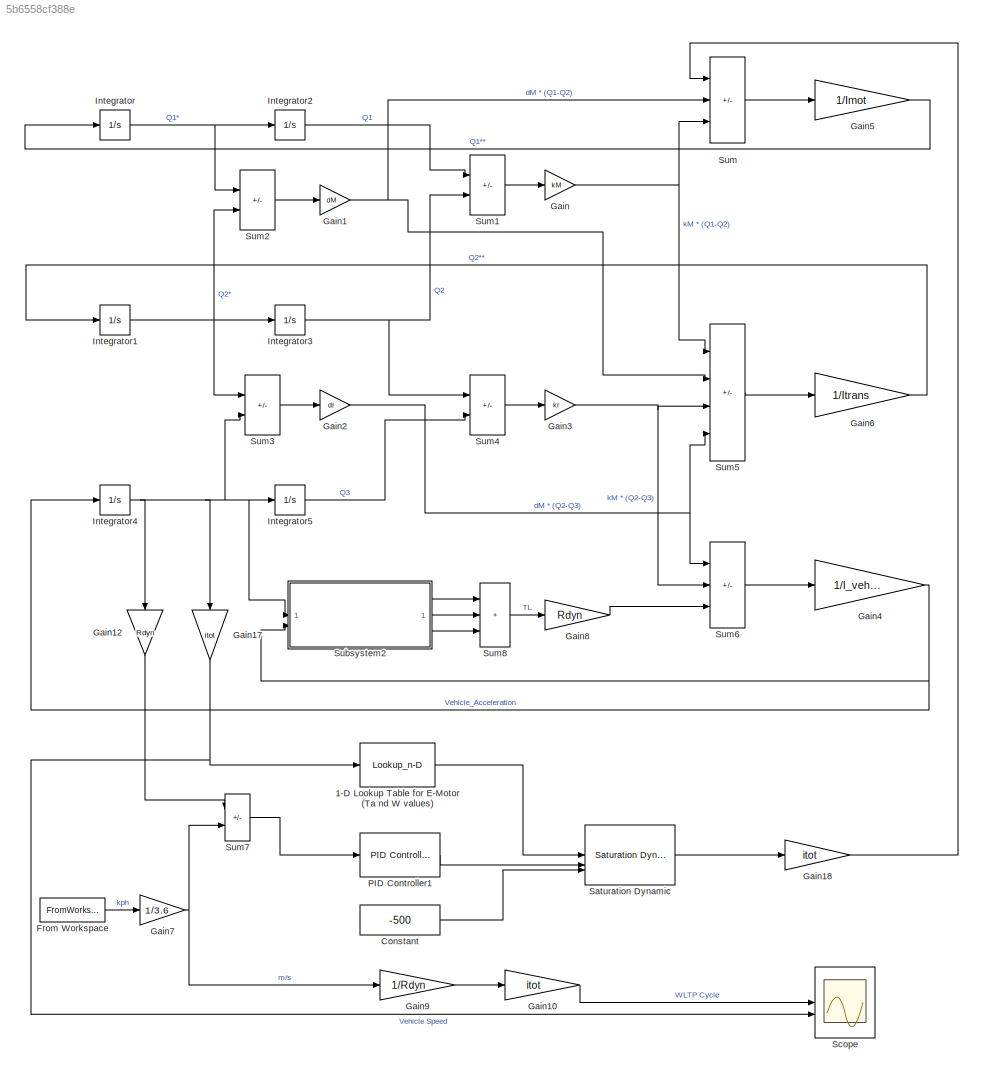
MODEL slx_5b6558cf388e
KIND model
CONFIG AbsTol = auto
CONFIG EnableMultiTasking = off
CONFIG FixedStep = auto
CONFIG MaxStep = auto
CONFIG MinStep = auto
CONFIG RelTol = 1e-3
CONFIG SampleTimeConstraint = Unconstrained
CONFIG SolverName = VariableStepAuto
CONFIG StartTime = 0.0
CONFIG StopTime = 1800
BLOCK [Lookup_n-D] 1-D Lookup Table for E-Motor (Ta nd W values)
  BreakpointsForDimension1 = [0 d.W1 d.W2 d.W3 1000.1 1001]
  InputPortMap = u0
  InternalRulePriority = Speed
  NumberOfTableDimensions = 1
  RndMeth = Simplest
  Table = [d.T1 d.T1 d.T2 d.T3 0 0]
BLOCK [Constant] Constant
  Value = -500
BLOCK [FromWorkspace] From Workspace
  VariableName = wltp_st
BLOCK [Gain] Gain
  Gain = kM
BLOCK [Gain] Gain1
  Gain = dM
BLOCK [Gain] Gain10
  Gain = itot
BLOCK [Gain] Gain12
  Gain = Rdyn
  NameLocation = left
BLOCK [Gain] Gain17
  Gain = itot
  NameLocation = left
BLOCK [Gain] Gain18
  Gain = itot
BLOCK [Gain] Gain2
  Gain = dr
BLOCK [Gain] Gain3
  Gain = kr
BLOCK [Gain] Gain4
  Gain = 1/I_veh_red
BLOCK [Gain] Gain5
  Gain = 1/Imot
BLOCK [Gain] Gain6
  Gain = 1/Itrans
BLOCK [Gain] Gain7
  Gain = 1/3.6
BLOCK [Gain] Gain8
  Gain = Rdyn
BLOCK [Gain] Gain9
  Gain = 1/Rdyn
BLOCK [Integrator] Integrator
BLOCK [Integrator] Integrator1
BLOCK [Integrator] Integrator2
BLOCK [Integrator] Integrator3
BLOCK [Integrator] Integrator4
BLOCK [Integrator] Integrator5
BLOCK [Reference] PID Controller1  REF=slpidlib/PID Controller
  LibrarySourceBlock = simulink/Continuous/PID Controller
  SourceBlock = slpidlib/PID Controller
  SourceType = PID 1dof
BLOCK [Reference] Saturation Dynamic  REF=simulink/Discontinuities/Saturation
Dynamic
  SourceBlock = simulink/Discontinuities/Saturation\nDynamic
  SourceType = Saturation Dynamic
BLOCK [Scope] Scope
  Floating = off
  NumInputPorts = 2
  ScopeSpecificationString = Simulink.scopes.TimeScopeBlockCfg('CurrentConfiguration', extmgr.ConfigurationSet(extmgr.Configuration('Core','General UI',true),extmgr.Configuration('Core','Source UI',true),extmgr.Configuration('Sources','WiredSimulink',true),extmgr.Configuration('Visuals','Time Domain',true,'SerializedDisplays',{struct('MinYLimReal','-156.35368','MaxYLimReal','1392.06399','YLabelReal','','MinYLimMag',' 0.00000'...<+1417ch>
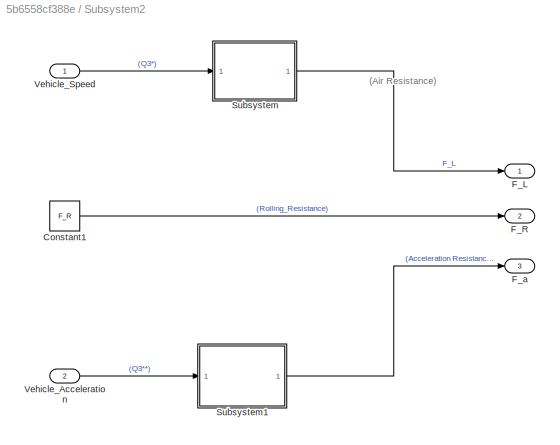
BLOCK [SubSystem] Subsystem2
BLOCK [Constant] Subsystem2/Constant1
  Value = F_R
BLOCK [Outport] Subsystem2/F_L 
BLOCK [Outport] Subsystem2/F_R
  Port = 2
BLOCK [Outport] Subsystem2/F_a
  Port = 3
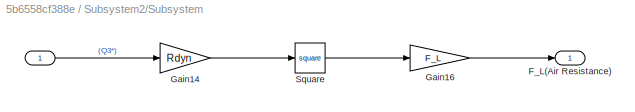
BLOCK [SubSystem] Subsystem2/Subsystem
BLOCK [Inport] Subsystem2/Subsystem/ 
BLOCK [Outport] Subsystem2/Subsystem/F_L(Air Resistance)
BLOCK [Gain] Subsystem2/Subsystem/Gain14
  Gain = Rdyn
BLOCK [Gain] Subsystem2/Subsystem/Gain16
  Gain = F_L
  NameLocation = top
BLOCK [Math] Subsystem2/Subsystem/Square
  Operator = square
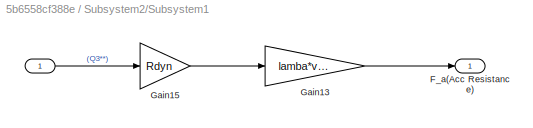
BLOCK [SubSystem] Subsystem2/Subsystem1
BLOCK [Inport] Subsystem2/Subsystem1/ 
BLOCK [Outport] Subsystem2/Subsystem1/F_a(Acc Resistance)
BLOCK [Gain] Subsystem2/Subsystem1/Gain13
  Gain = lamba*vmass
BLOCK [Gain] Subsystem2/Subsystem1/Gain15
  Gain = Rdyn
BLOCK [Inport] Subsystem2/Vehicle_Acceleration
  Port = 2
BLOCK [Inport] Subsystem2/Vehicle_Speed
BLOCK [Sum] Sum
  IconShape = rectangular
  Inputs = +--
BLOCK [Sum] Sum1
  IconShape = rectangular
  Inputs = +-
BLOCK [Sum] Sum2
  IconShape = rectangular
  Inputs = +-
BLOCK [Sum] Sum3
  IconShape = rectangular
  Inputs = +-
BLOCK [Sum] Sum4
  IconShape = rectangular
  Inputs = +-
BLOCK [Sum] Sum5
  IconShape = rectangular
  Inputs = ++--
BLOCK [Sum] Sum6
  IconShape = rectangular
  Inputs = ++-
BLOCK [Sum] Sum7
  IconShape = rectangular
  Inputs = -+
BLOCK [Sum] Sum8
  IconShape = rectangular
  Inputs = +++
ANNOTATION Subsystem2: (Air Resistance)
LINE 1-D Lookup Table for E-Motor (Ta nd W values):1 -> Saturation Dynamic:1
LINE Constant:1 -> Saturation Dynamic:3
LINE From Workspace:1 -> Gain7:1
LINE Gain10:1 -> Scope:1
LINE Gain12:1 -> Sum7:1
NET Gain17:1 -> 1-D Lookup Table for E-Motor (Ta nd W values):1, Scope:2
LINE Gain18:1 -> Sum:1
NET Gain1:1 -> Sum5:2, Sum:2
NET Gain2:1 -> Sum5:4, Sum6:1
NET Gain3:1 -> Sum5:3, Sum6:2
NET Gain4:1 -> Integrator4:1, Subsystem2:2
LINE Gain5:1 -> Integrator:1
LINE Gain6:1 -> Integrator1:1
NET Gain7:1 -> Gain9:1, Sum7:2
LINE Gain8:1 -> Sum6:3
LINE Gain9:1 -> Gain10:1
NET Gain:1 -> Sum5:1, Sum:3
NET Integrator1:1 -> Integrator3:1, Sum2:2, Sum3:1
LINE Integrator2:1 -> Sum1:1
NET Integrator3:1 -> Sum1:2, Sum4:1
NET Integrator4:1 -> Gain12:1, Gain17:1, Integrator5:1, Subsystem2:1, Sum3:2
LINE Integrator5:1 -> Sum4:2
NET Integrator:1 -> Integrator2:1, Sum2:1
LINE PID Controller1:1 -> Saturation Dynamic:2
LINE Saturation Dynamic:1 -> Gain18:1
LINE Subsystem2/Constant1:1 -> Subsystem2/F_R:1
LINE Subsystem2/Subsystem/ :1 -> Subsystem2/Subsystem/Gain14:1
LINE Subsystem2/Subsystem/Gain14:1 -> Subsystem2/Subsystem/Square:1
LINE Subsystem2/Subsystem/Gain16:1 -> Subsystem2/Subsystem/F_L(Air Resistance):1
LINE Subsystem2/Subsystem/Square:1 -> Subsystem2/Subsystem/Gain16:1
LINE Subsystem2/Subsystem1/ :1 -> Subsystem2/Subsystem1/Gain15:1
LINE Subsystem2/Subsystem1/Gain13:1 -> Subsystem2/Subsystem1/F_a(Acc Resistance):1
LINE Subsystem2/Subsystem1/Gain15:1 -> Subsystem2/Subsystem1/Gain13:1
LINE Subsystem2/Subsystem1:1 -> Subsystem2/F_a:1
LINE Subsystem2/Subsystem:1 -> Subsystem2/F_L :1
LINE Subsystem2/Vehicle_Acceleration:1 -> Subsystem2/Subsystem1:1
LINE Subsystem2/Vehicle_Speed:1 -> Subsystem2/Subsystem:1
LINE Subsystem2:1 -> Sum8:1
LINE Subsystem2:2 -> Sum8:2
LINE Subsystem2:3 -> Sum8:3
LINE Sum1:1 -> Gain:1
LINE Sum2:1 -> Gain1:1
LINE Sum3:1 -> Gain2:1
LINE Sum4:1 -> Gain3:1
LINE Sum5:1 -> Gain6:1
LINE Sum6:1 -> Gain4:1
LINE Sum7:1 -> PID Controller1:1
LINE Sum8:1 -> Gain8:1
LINE Sum:1 -> Gain5:1
note: NET lines group one-source signal fan-out (src -> all destinations, sorted); 1:1 wires keep LINE
